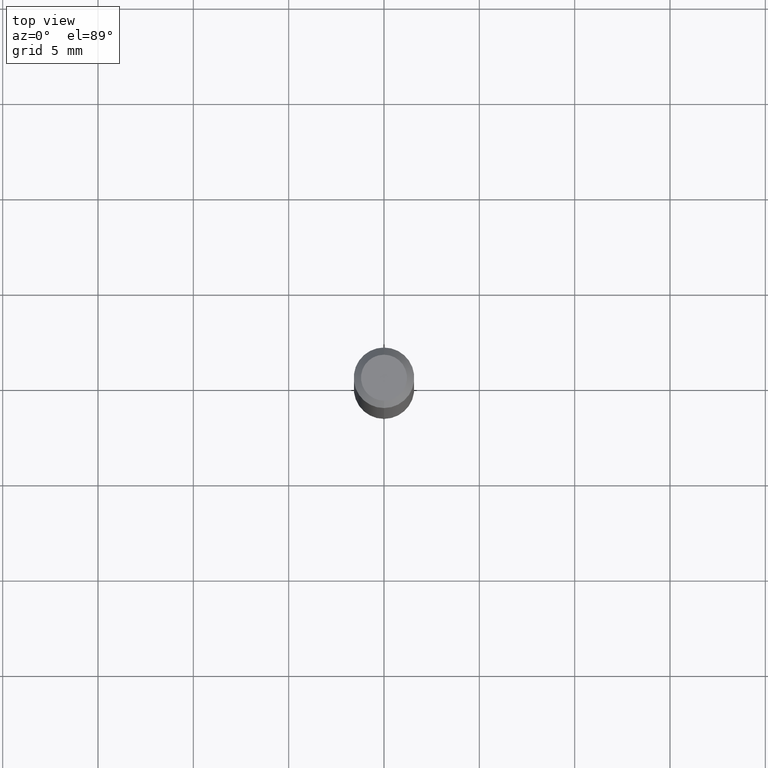
[diagram: clean part render]
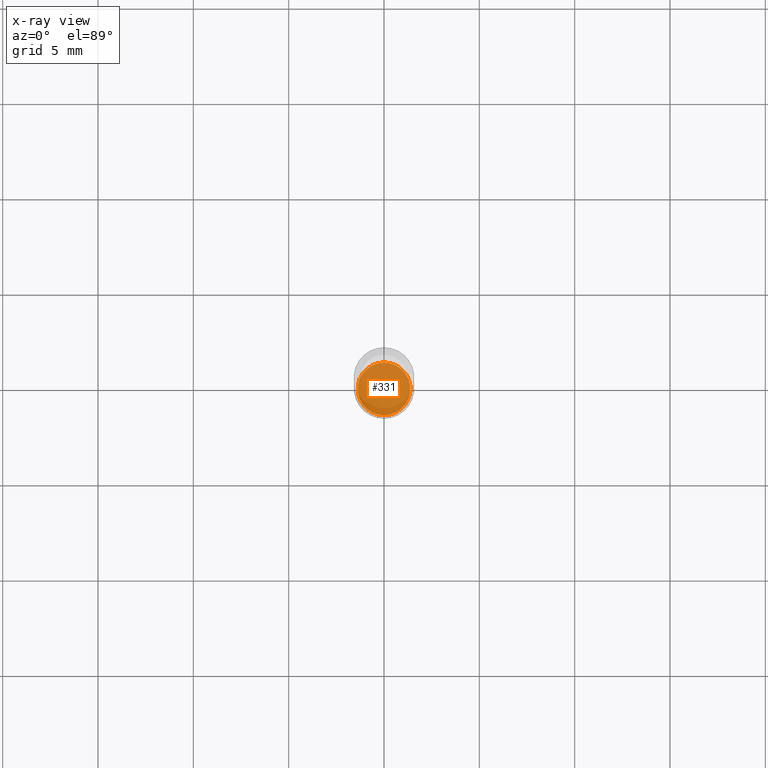
[diagram: x-ray — body ghosted, one internal face saturated and labeled with its STEP entity id]
A machine part, top view, then the same camera in x-ray: the body is ghosted and one INTERNAL B-rep face — a face not visible from any outside direction — is saturated and labeled: STEP entity #331.
In plain terms, the highlighted planar face has unit normal (-0, 0, 1).
Its self-contained STEP definition (entity closure, byte-faithful):
#24 = FACE_OUTER_BOUND ( 'NONE', #435, .T. ) ;
#35 = DIRECTION ( 'NONE',  ( -2.445595275774768217E-29, 3.491300227192590875E-15, 1.000000000000000000 ) ) ;
#142 = DIRECTION ( 'NONE',  ( -2.445595275774767937E-29, 3.491300227192590875E-15, 1.000000000000000000 ) ) ;
#163 = EDGE_CURVE ( 'NONE', #478, #368, #187, .T. ) ;
#170 = AXIS2_PLACEMENT_3D ( 'NONE', #214, #339, #304 ) ;
#187 = CIRCLE ( 'NONE', #471, 0.05449999999999999983 ) ;
#214 = CARTESIAN_POINT ( 'NONE',  ( 3.264869693159317002E-29, -4.660885803302110079E-15, -1.335000000000000409 ) ) ;
#224 = CARTESIAN_POINT ( 'NONE',  ( 3.264869693159317002E-29, -4.660885803302110079E-15, -1.335000000000000409 ) ) ;
#240 = ORIENTED_EDGE ( 'NONE', *, *, #383, .F. ) ;
#265 = CIRCLE ( 'NONE', #170, 0.05449999999999999983 ) ;
#267 = CARTESIAN_POINT ( 'NONE',  ( 3.890221478286881815E-16, 0.05449999999999533690, -1.335000000000000631 ) ) ;
#299 = ORIENTED_EDGE ( 'NONE', *, *, #163, .F. ) ;
#304 = DIRECTION ( 'NONE',  ( -6.982962677686265922E-15, -1.000000000000000000, 5.012565125989473962E-15 ) ) ;
#331 = ADVANCED_FACE ( 'NONE', ( #24 ), #494, .F. ) ;
#337 = DIRECTION ( 'NONE',  ( -6.982962677686265922E-15, -1.000000000000000000, 3.491300227192590875E-15 ) ) ;
#339 = DIRECTION ( 'NONE',  ( -2.445595275774768217E-29, 3.491300227192590875E-15, 1.000000000000000000 ) ) ;
#368 = VERTEX_POINT ( 'NONE', #267 ) ;
#383 = EDGE_CURVE ( 'NONE', #368, #478, #265, .T. ) ;
#415 = CARTESIAN_POINT ( 'NONE',  ( -3.805714659338688453E-16, -0.05450000000000466277, -1.335000000000000187 ) ) ;
#435 = EDGE_LOOP ( 'NONE', ( #299, #240 ) ) ;
#458 = CARTESIAN_POINT ( 'NONE',  ( 3.264869693159317002E-29, -4.660885803302110079E-15, -1.335000000000000409 ) ) ;
#464 = AXIS2_PLACEMENT_3D ( 'NONE', #458, #142, #337 ) ;
#467 = DIRECTION ( 'NONE',  ( -6.982962677686265922E-15, -1.000000000000000000, 5.012565125989473962E-15 ) ) ;
#471 = AXIS2_PLACEMENT_3D ( 'NONE', #224, #35, #467 ) ;
#478 = VERTEX_POINT ( 'NONE', #415 ) ;
#494 = PLANE ( 'NONE',  #464 ) ;